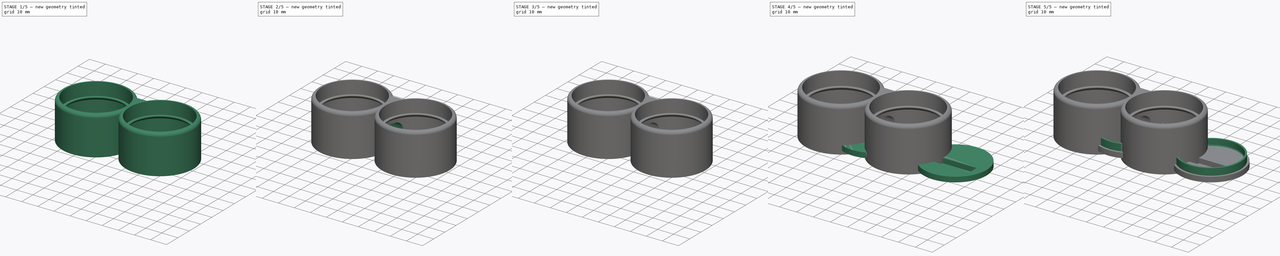
[diagram: build sequence overview — one tinted view per stage of 5, left to right]
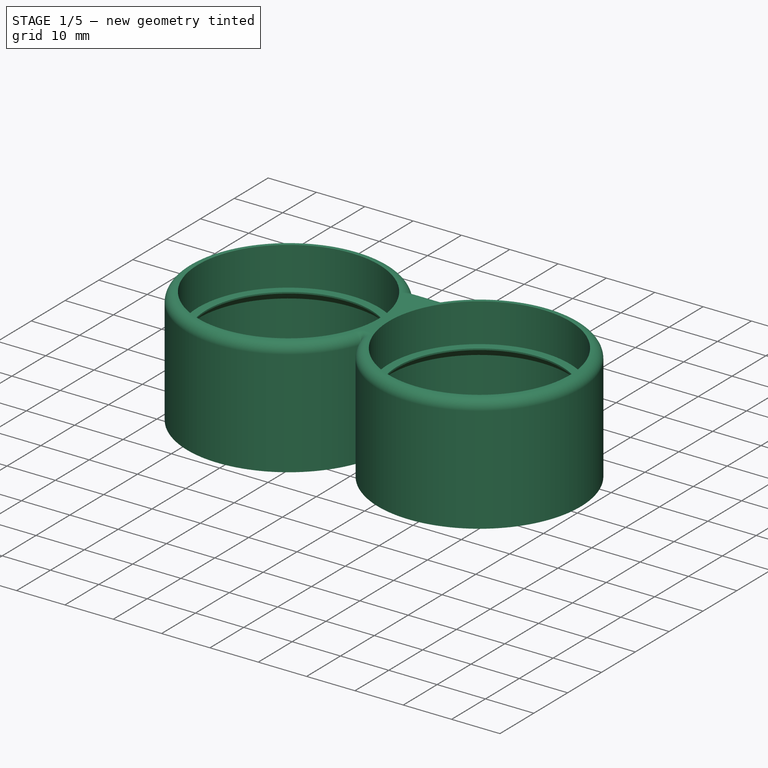
[diagram: stage 1 of 5 — iso view after this stage's code; geometry added in this stage tinted green]
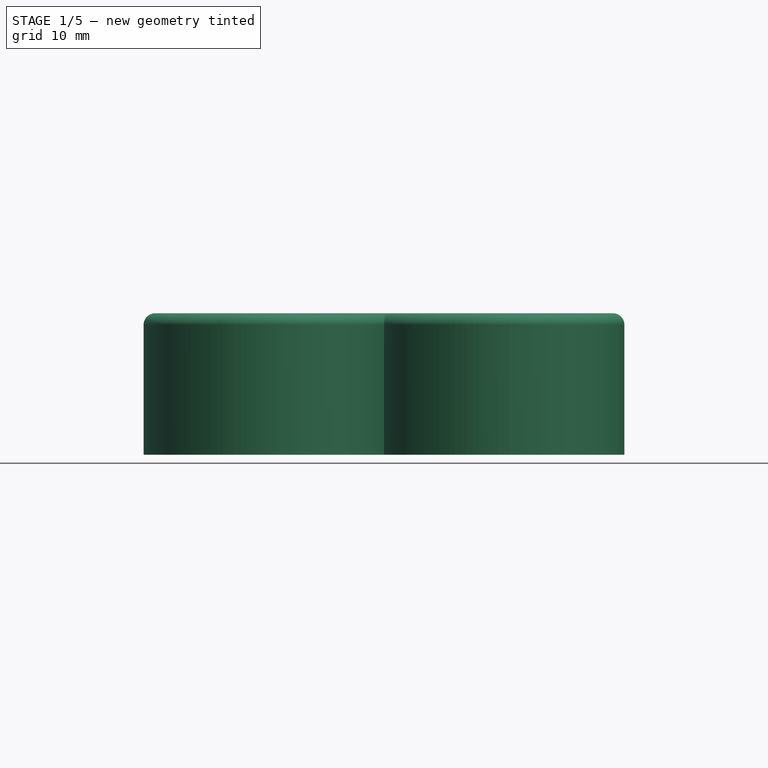
[diagram: stage 1 of 5 — front view after this stage's code; geometry added in this stage tinted green]
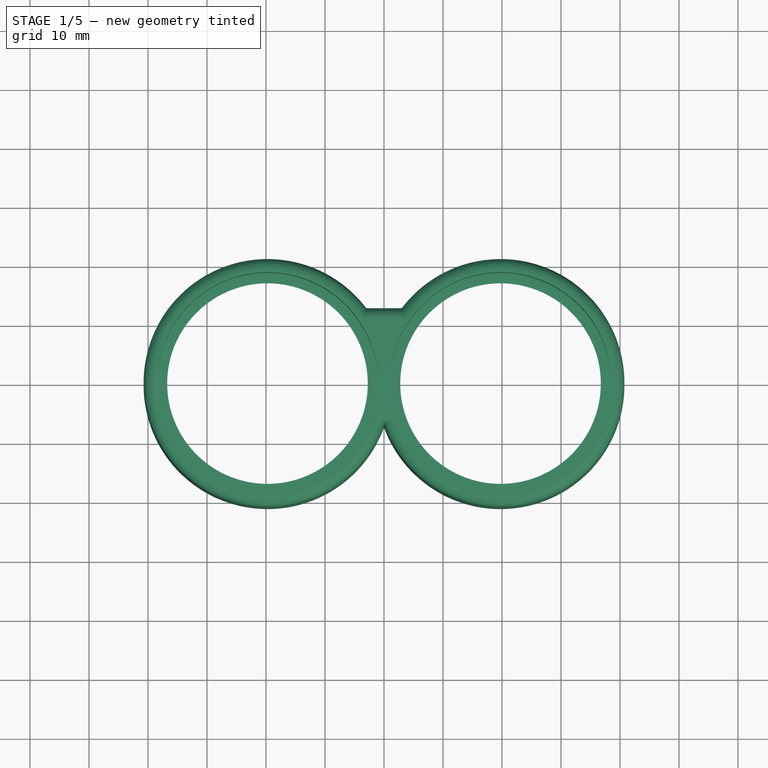
[diagram: stage 1 of 5 — top view after this stage's code; geometry added in this stage tinted green]
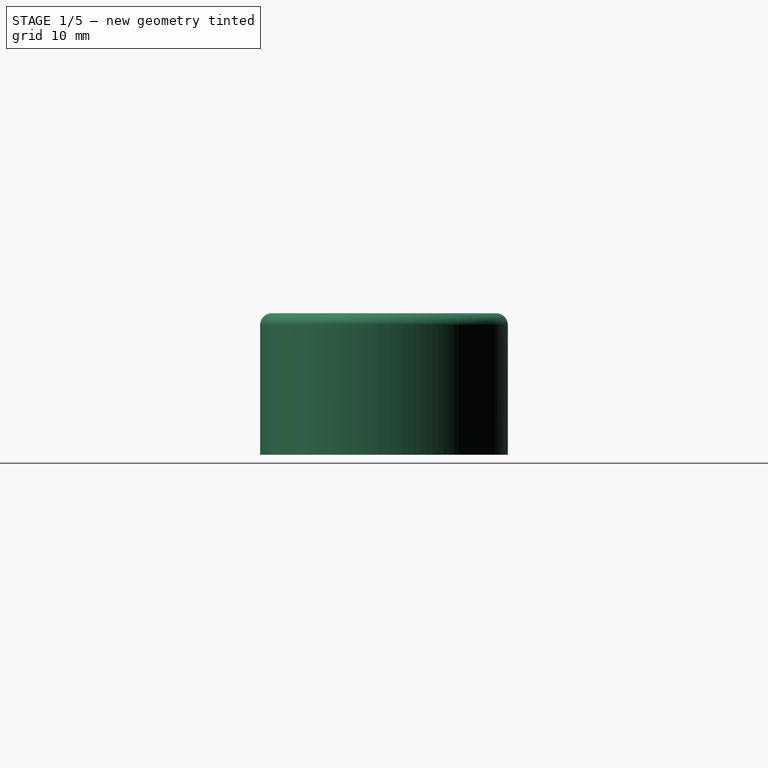
[diagram: stage 1 of 5 — right view after this stage's code; geometry added in this stage tinted green]
FCSTD DOCUMENT  (FreeCAD 0.21R33668 +26 (Git))
Label: Candle Holder
License: All rights reserved
LicenseURL: https://en.wikipedia.org/wiki/All_rights_reserved
objects: Sketcher::SketchObject×9, PartDesign::Fillet×6, PartDesign::Pad×5, PartDesign::Pocket×4, PartDesign::Chamfer×3, PartDesign::Body×2, App::Part×2
note: 47 computed .brp shape members not serialized (recipe doc carries the construction recipe); baked Part::Feature solids carry a one-line shape summary decoded from their .brp

FEATURE [PartDesign::Body] Body
  Group = -> [Sketch,Pad,Chamfer,Sketch001,Pocket,Fillet,Sketch002,Pad001,Fillet001,Fillet002]
  Origin = -> Origin001
  Tip = -> Fillet002
FEATURE [App::Part] Part
  Group = -> [Body]
  Origin = -> Origin
FEATURE [Sketcher::SketchObject] Sketch003
  FullyConstrained = true
  MapMode = 5
  Support = -> [XY_Plane003]
  sketch-geometry (9):
    g0: Circle CenterX=-19.75 CenterY=0 CenterZ=0 NormalX=0 NormalY=0 NormalZ=1 AngleXU=0 Radius=18.75
    g1: Circle CenterX=19.75 CenterY=0 CenterZ=0 NormalX=0 NormalY=0 NormalZ=1 AngleXU=0 Radius=18.75
    g2: ArcOfCircle CenterX=-19.75 CenterY=0 CenterZ=0 NormalX=0 NormalY=0 NormalZ=1 AngleXU=0 Radius=21 StartAngle=0.647459 EndAngle=5.93642
    g3: ArcOfCircle CenterX=19.75 CenterY=0 CenterZ=0 NormalX=0 NormalY=0 NormalZ=1 AngleXU=0 Radius=21 StartAngle=3.48836 EndAngle=8.77732
    g4: GeomPoint X=-1 Y=0 Z=0
    g5: GeomPoint X=1 Y=0 Z=0
    g6: LineSegment StartX=-3 StartY=12.6664 StartZ=0 EndX=3 EndY=12.6664 EndZ=0
    g7: LineSegment StartX=0 StartY=0 StartZ=0 EndX=-1 EndY=0 EndZ=0
    g8: LineSegment StartX=0 StartY=0 StartZ=0 EndX=1 EndY=0 EndZ=0
  constraints (23):
    c: PointOnObject(g0,g-1)
    c: PointOnObject(g1,g-1)
    c: Diameter(g1) = 37.5
    c: Equal(g0,g1)
    c: Coincident(g2,g0)
    c: Coincident(g3,g1)
    c: Equal(g2,g3)
    c: PointOnObject(g4,g0)
    c: PointOnObject(g5,g1)
    c: PointOnObject(g5,g-1)
    c: PointOnObject(g4,g-1)
    c: DistanceX(g4,g5) = 2
    c: Diameter(g2) = 42
    c: Coincident(g6,g3)
    c: Horizontal(g6)
    c: Coincident(g2,g6)
    c: Coincident(g7,g-1)
    c: Coincident(g7,g4)
    c: Coincident(g8,g7)
    c: Coincident(g8,g5)
    c: Equal(g7,g8)
    c: DistanceX(g6,g6) = 6
    c: Coincident(g3,g2)
FEATURE [PartDesign::Pad] Pad002
  Direction = (0,0,1)
  Length = 24
  Length2 = 10
  Profile = -> Sketch003
  ReferenceAxis = -> Sketch003 [N_Axis]
  Type = 0
FEATURE [PartDesign::Fillet] Fillet003
  Base = -> Pad002 [Edge9,Edge7,Edge4]
  BaseFeature = -> Pad002
  Radius = 2
  SupportTransform = false
  UseAllEdges = false
FEATURE [Sketcher::SketchObject] Sketch004
  ExternalGeometry = -> [Fillet003]
  FullyConstrained = true
  MapMode = 5
  Placement = pos=(0,0,24) rot=(0,0,1;0rad)
  Support = -> [Fillet003]
  sketch-geometry (4):
    g0: Circle CenterX=-19.75 CenterY=0 CenterZ=0 NormalX=0 NormalY=0 NormalZ=1 AngleXU=0 Radius=18.75
    g1: Circle CenterX=19.75 CenterY=0 CenterZ=0 NormalX=0 NormalY=0 NormalZ=1 AngleXU=0 Radius=18.75
    g2: Circle CenterX=-19.75 CenterY=0 CenterZ=0 NormalX=0 NormalY=0 NormalZ=1 AngleXU=0 Radius=17
    g3: Circle CenterX=19.75 CenterY=0 CenterZ=0 NormalX=0 NormalY=0 NormalZ=1 AngleXU=0 Radius=17
  constraints (8):
    c: Coincident(g0,g-3)
    c: Coincident(g1,g-4)
    c: Coincident(g2,g0)
    c: Coincident(g3,g1)
    c: Equal(g0,g-3)
    c: Equal(g1,g-4)
    c: Diameter(g2) = 34
    c: Equal(g2,g3)
FEATURE [PartDesign::Pad] Pad003
  BaseFeature = -> Fillet003
  Direction = (0,0,1)
  Length = 10
  Length2 = -8
  Profile = -> Sketch004
  ReferenceAxis = -> Sketch004 [N_Axis]
  Reversed = true
  Type = 4
FEATURE [PartDesign::Chamfer] Chamfer001
  Angle = 45
  Base = -> Pad003 [Edge32,Edge31]
  BaseFeature = -> Pad003
  ChamferType = 0
  FlipDirection = false
  Size = 1.7
  Size2 = 1
  SupportTransform = false
  UseAllEdges = false
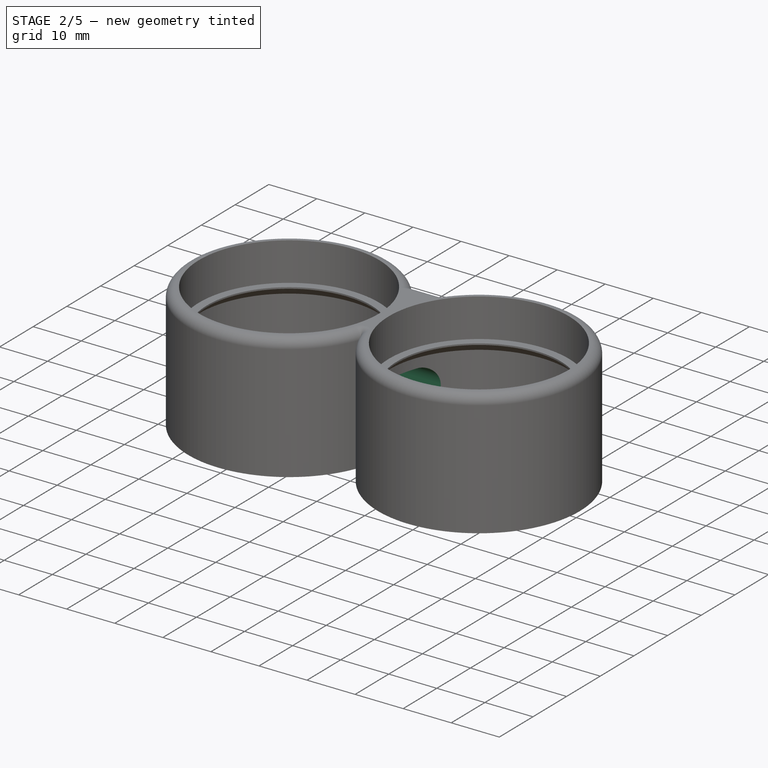
[diagram: stage 2 of 5 — iso view after this stage's code; geometry added in this stage tinted green]
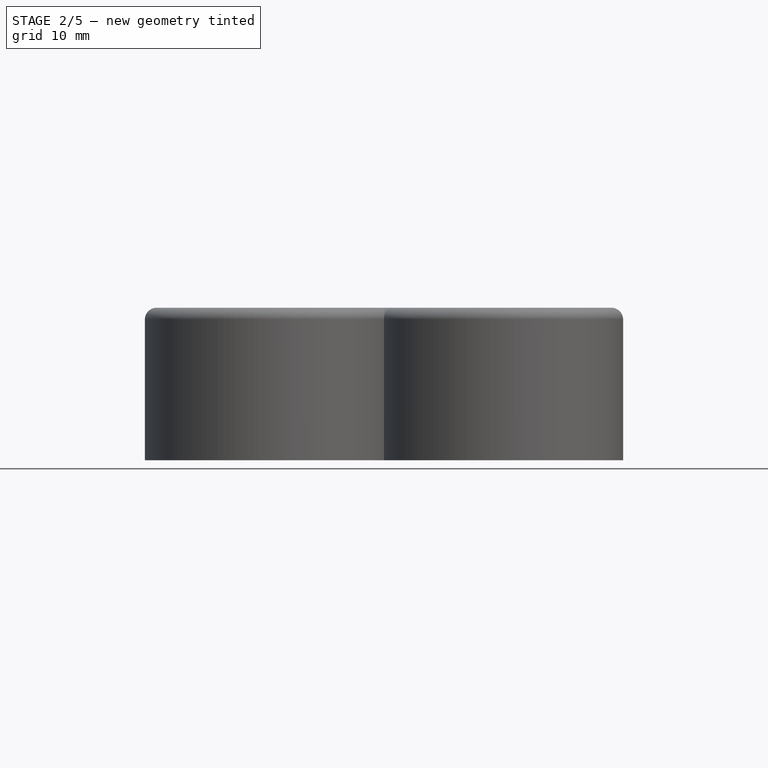
[diagram: stage 2 of 5 — front view after this stage's code; geometry added in this stage tinted green]
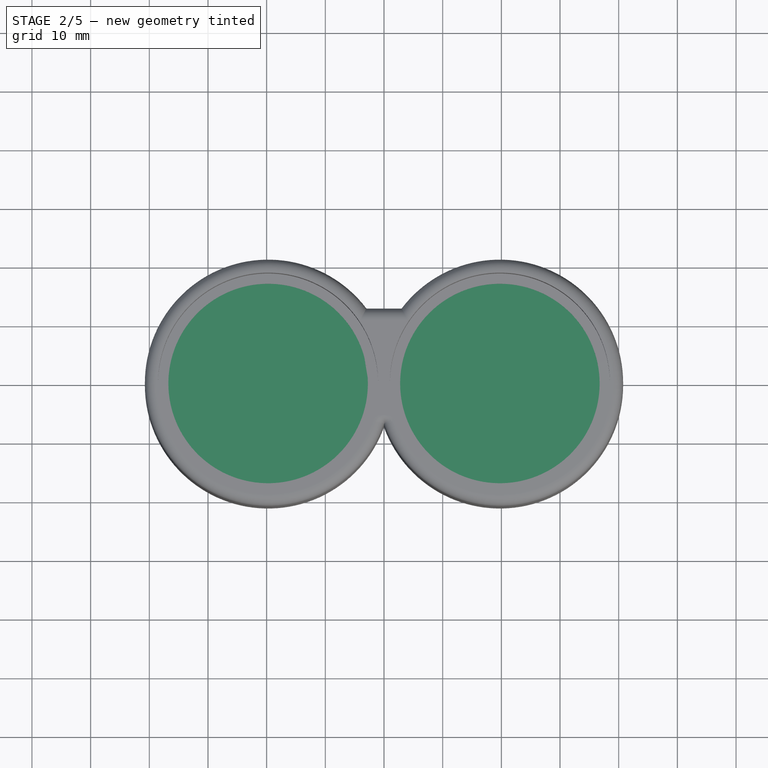
[diagram: stage 2 of 5 — top view after this stage's code; geometry added in this stage tinted green]
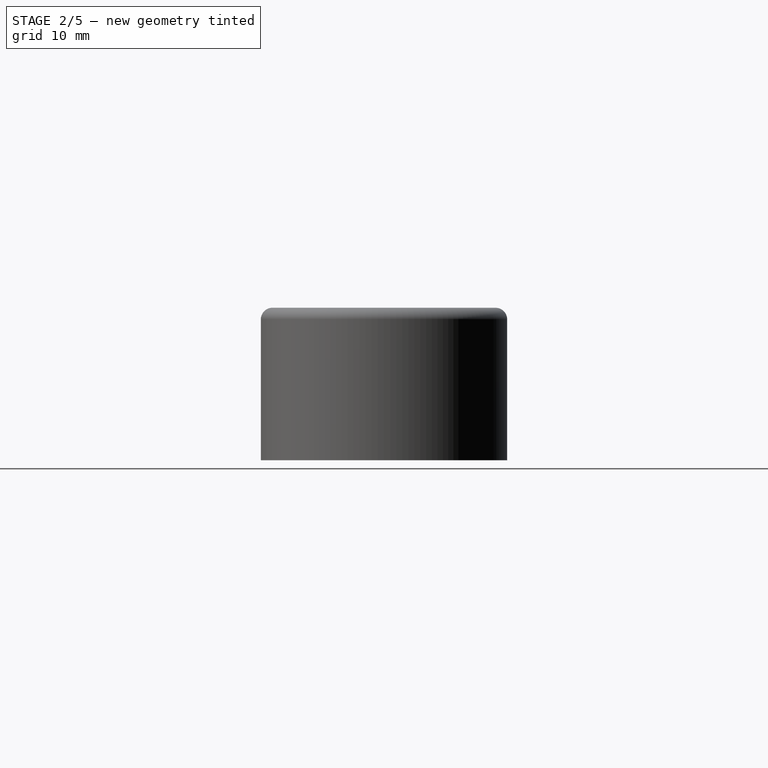
[diagram: stage 2 of 5 — right view after this stage's code; geometry added in this stage tinted green]
FEATURE [Sketcher::SketchObject] Sketch005
  ExternalGeometry = -> [Chamfer001]
  FullyConstrained = true
  MapMode = 5
  Placement = pos=(0,0,0) rot=(1,0,0;3.14159rad)
  Support = -> [Chamfer001]
  sketch-geometry (6):
    g0: LineSegment StartX=10 StartY=-10.6664 StartZ=0 EndX=-10 EndY=-10.6664 EndZ=0
    g1: LineSegment StartX=-10 StartY=-10.6664 StartZ=0 EndX=-10 EndY=5.13705 EndZ=0
    g2: LineSegment StartX=-10 StartY=5.13705 StartZ=0 EndX=10 EndY=5.13705 EndZ=0
    g3: LineSegment StartX=10 StartY=5.13705 StartZ=0 EndX=10 EndY=-10.6664 EndZ=0
    g4: LineSegment StartX=-1e-16 StartY=0 StartZ=0 EndX=10 EndY=5.13705 EndZ=0
    g5: LineSegment StartX=-1e-16 StartY=0 StartZ=0 EndX=-10 EndY=5.13705 EndZ=0
  constraints (16):
    c: Coincident(g0,g1)
    c: Coincident(g1,g2)
    c: Coincident(g2,g3)
    c: Coincident(g3,g0)
    c: Horizontal(g0)
    c: Horizontal(g2)
    c: Vertical(g1)
    c: Vertical(g3)
    c: DistanceY(g1,g-5) = 2
    c: DistanceY(g-5,g0) = 2
    c: Coincident(g4,g-1)
    c: Coincident(g4,g2)
    c: Coincident(g5,g4)
    c: Coincident(g5,g1)
    c: Equal(g4,g5)
    c: DistanceX(g2,g2) = 20
FEATURE [PartDesign::Pocket] Pocket001
  BaseFeature = -> Chamfer001
  Direction = (0,0,1)
  Length = 12
  Length2 = 5
  Profile = -> Sketch005
  ReferenceAxis = -> Sketch005 [N_Axis]
  Type = 0
FEATURE [PartDesign::Fillet] Fillet004
  Base = -> Pocket001 [Edge20,Edge21]
  BaseFeature = -> Pocket001
  Radius = 4
  SupportTransform = false
  UseAllEdges = false
FEATURE [Sketcher::SketchObject] Sketch006
  ExternalGeometry = -> [Fillet004]
  FullyConstrained = true
  MapMode = 5
  Placement = pos=(0,0,0) rot=(1,0,0;3.14159rad)
  Support = -> [Fillet004]
  sketch-geometry (3):
    g0: ArcOfCircle CenterX=-19.75 CenterY=0 CenterZ=0 NormalX=0 NormalY=0 NormalZ=1 AngleXU=0 Radius=21 StartAngle=0.346768 EndAngle=5.63573
    g1: ArcOfCircle CenterX=19.75 CenterY=0 CenterZ=0 NormalX=0 NormalY=0 NormalZ=1 AngleXU=0 Radius=21 StartAngle=3.78905 EndAngle=9.07801
    g2: LineSegment StartX=-3 StartY=-12.6664 StartZ=0 EndX=3 EndY=-12.6664 EndZ=0
  constraints (8):
    c: Coincident(g0,g-3)
    c: Coincident(g0,g-4)
    c: Vertical(g0,g-5)
    c: Coincident(g1,g-4)
    c: Coincident(g1,g0)
    c: Vertical(g1,g-5)
    c: Coincident(g2,g0)
    c: Coincident(g2,g1)
FEATURE [PartDesign::Pad] Pad004
  BaseFeature = -> Fillet004
  Direction = (0,0,-1)
  Length = 2
  Length2 = 10
  Profile = -> Sketch006
  ReferenceAxis = -> Sketch006 [N_Axis]
  Refine = true
  Type = 0
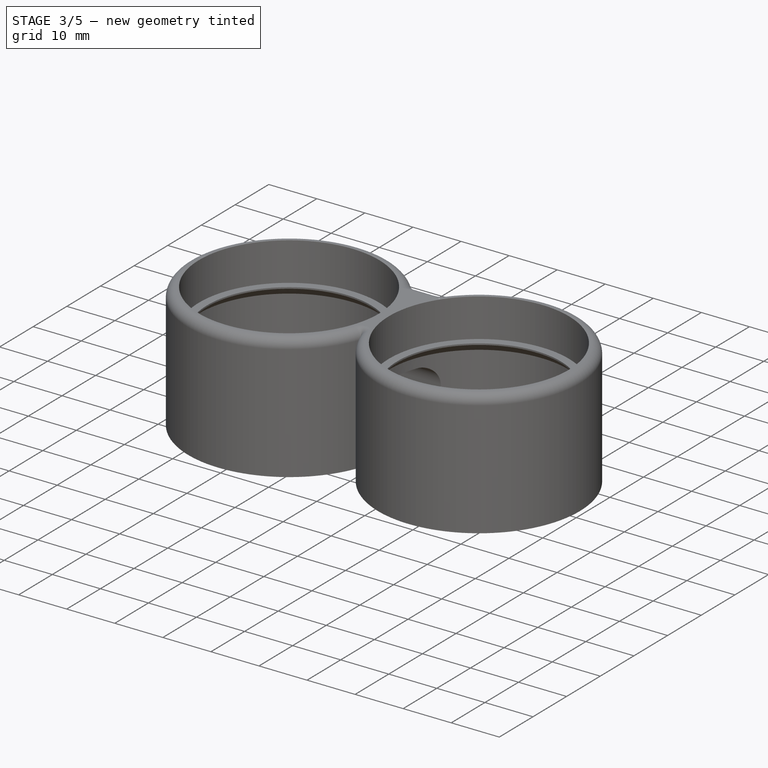
[diagram: stage 3 of 5 — iso view after this stage's code; geometry added in this stage tinted green]
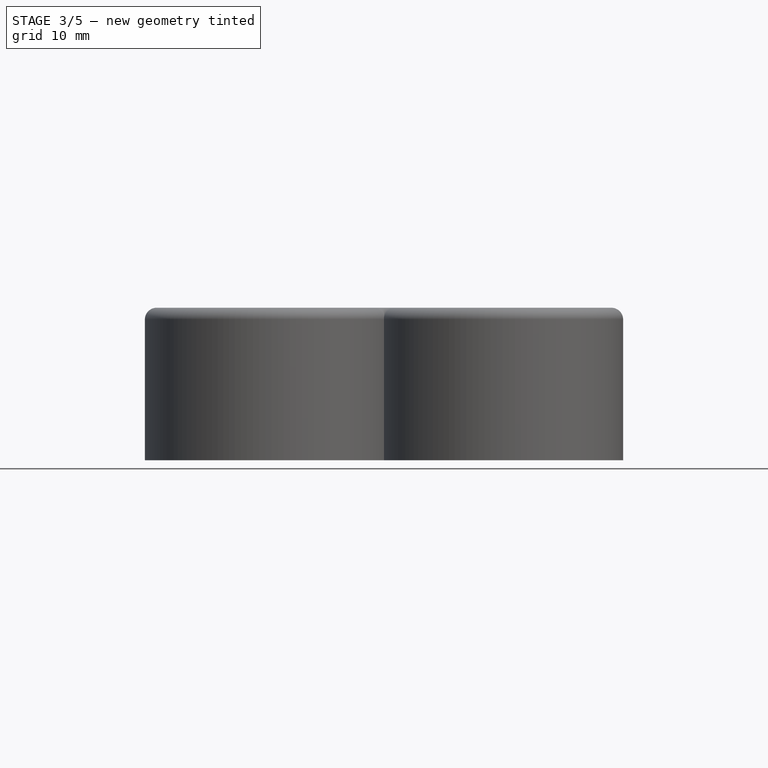
[diagram: stage 3 of 5 — front view after this stage's code; geometry added in this stage tinted green]
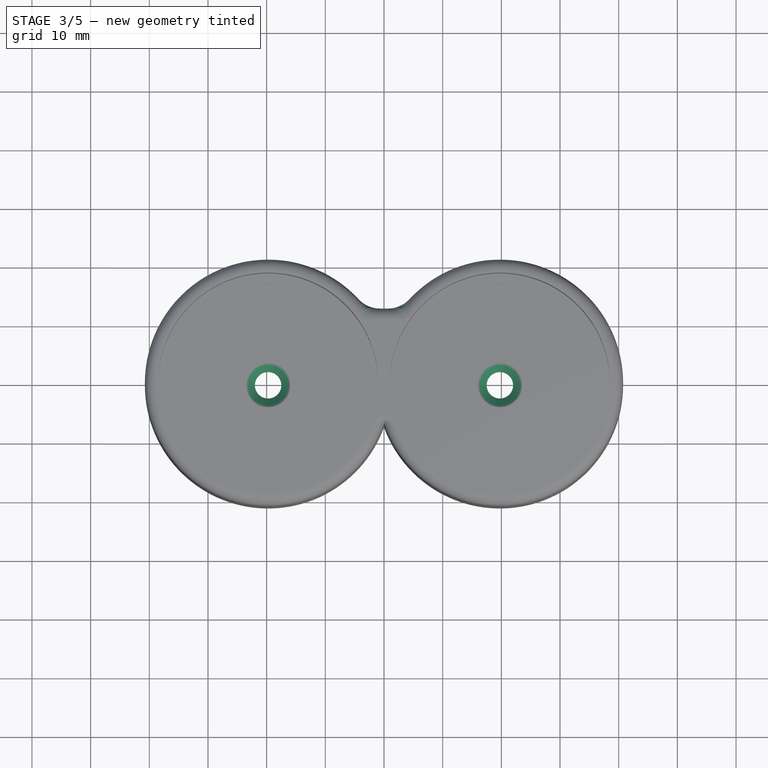
[diagram: stage 3 of 5 — top view after this stage's code; geometry added in this stage tinted green]
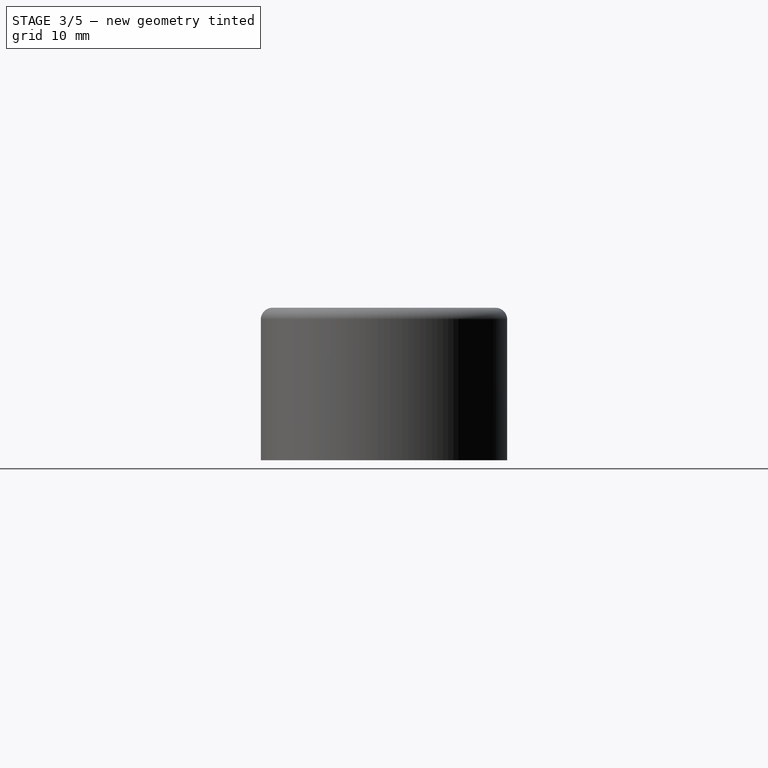
[diagram: stage 3 of 5 — right view after this stage's code; geometry added in this stage tinted green]
FEATURE [PartDesign::Fillet] Fillet005
  Base = -> Pad004 [Edge55,Edge53]
  BaseFeature = -> Pad004
  Radius = 5
  SupportTransform = false
  UseAllEdges = false
FEATURE [Sketcher::SketchObject] Sketch007
  FullyConstrained = true
  MapMode = 5
  Placement = pos=(0,10.6664,0) rot=(1,0,0;1.5708rad)
  Support = -> [Fillet005]
  sketch-geometry (1):
    g0: Circle CenterX=0 CenterY=2.2 CenterZ=0 NormalX=0 NormalY=0 NormalZ=1 AngleXU=0 Radius=1.9
  constraints (3):
    c: PointOnObject(g0,g-2)
    c: Diameter(g0) = 3.8
    c: DistanceY(g-1,g0) = 2.2
FEATURE [PartDesign::Pocket] Pocket002
  BaseFeature = -> Fillet005
  Direction = (0,1,-2e-16)
  Length = 5
  Length2 = 5
  Profile = -> Sketch007
  ReferenceAxis = -> Sketch007 [N_Axis]
  Type = 0
FEATURE [Sketcher::SketchObject] Sketch008
  ExternalGeometry = -> [Pocket002]
  FullyConstrained = true
  MapMode = 5
  Support = -> [Pocket002]
  sketch-geometry (2):
    g0: Circle CenterX=-19.75 CenterY=0 CenterZ=0 NormalX=0 NormalY=0 NormalZ=1 AngleXU=0 Radius=2.25
    g1: Circle CenterX=19.75 CenterY=0 CenterZ=0 NormalX=0 NormalY=0 NormalZ=1 AngleXU=0 Radius=2.25
  constraints (4):
    c: Diameter(g0) = 4.5
    c: Equal(g0,g1)
    c: Coincident(g0,g-3)
    c: Coincident(g1,g-4)
FEATURE [PartDesign::Pocket] Pocket003
  BaseFeature = -> Pocket002
  Direction = (0,0,-1)
  Length = 5
  Length2 = 5
  Profile = -> Sketch008
  ReferenceAxis = -> Sketch008 [N_Axis]
  Type = 0
FEATURE [PartDesign::Chamfer] Chamfer002
  Angle = 45
  Base = -> Pocket003 [Edge52,Edge54]
  BaseFeature = -> Pocket003
  ChamferType = 0
  FlipDirection = false
  Size = 1.5
  Size2 = 1
  SupportTransform = false
  UseAllEdges = false
FEATURE [PartDesign::Body] Body001
  Group = -> [Sketch003,Pad002,Fillet003,Sketch004,Pad003,Chamfer001,Sketch005,Pocket001,Fillet004,Sketch006,Pad004,Fillet005,Sketch007,Pocket002,Sketch008,Pocket003,Chamfer002]
  Origin = -> Origin003
  Tip = -> Chamfer002
FEATURE [App::Part] Part001
  Group = -> [Body001]
  Origin = -> Origin002
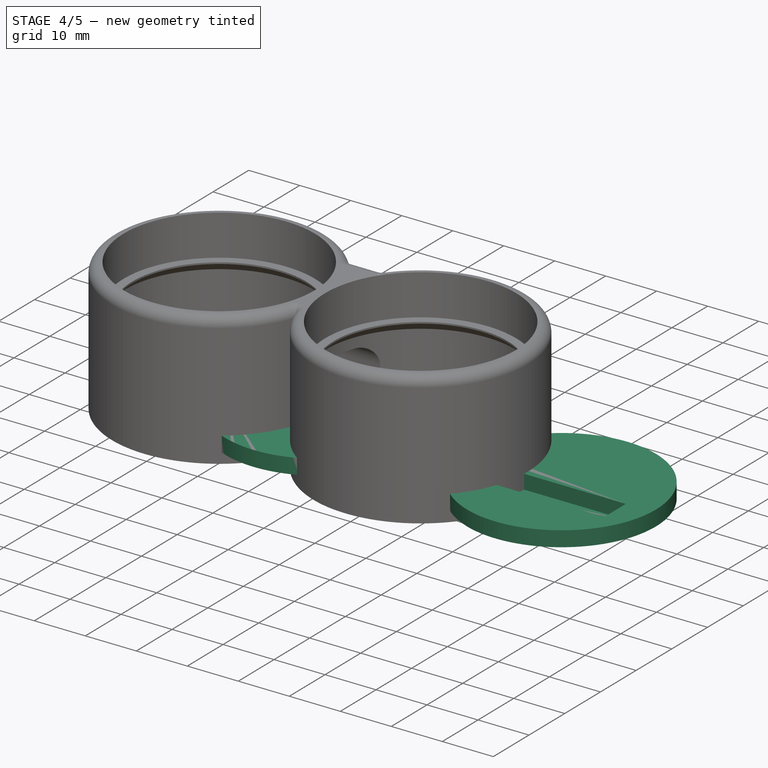
[diagram: stage 4 of 5 — iso view after this stage's code; geometry added in this stage tinted green]
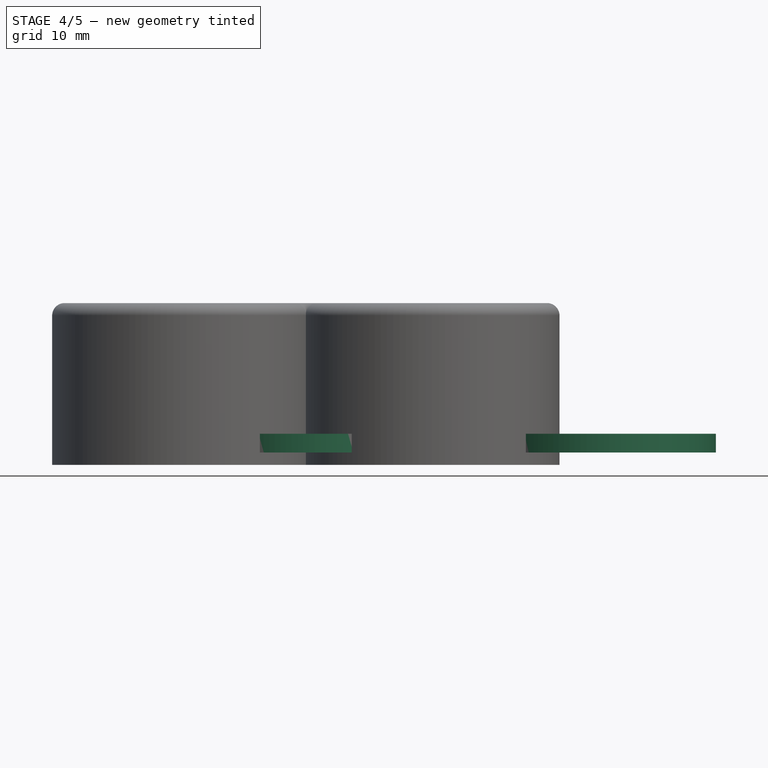
[diagram: stage 4 of 5 — front view after this stage's code; geometry added in this stage tinted green]
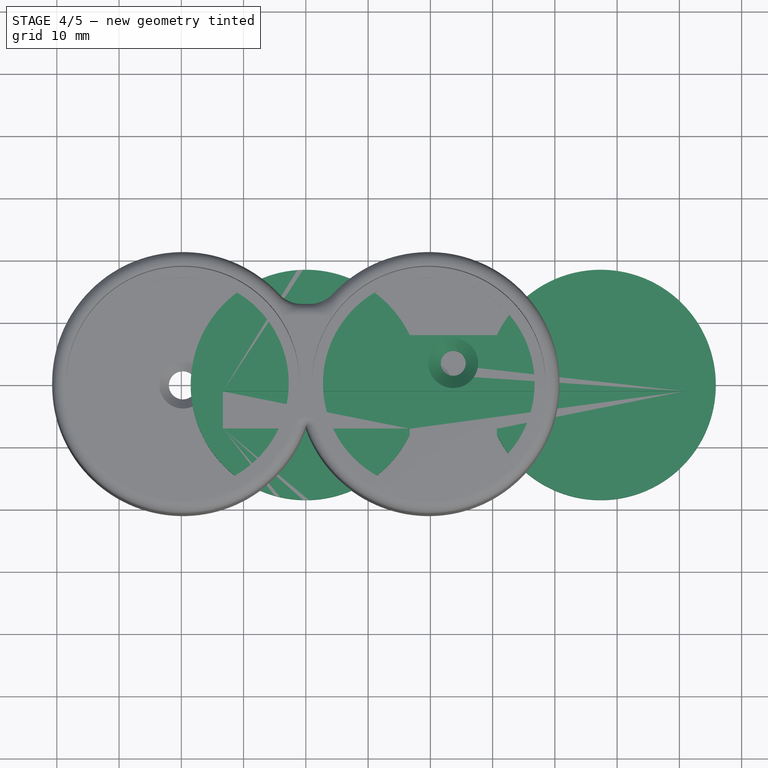
[diagram: stage 4 of 5 — top view after this stage's code; geometry added in this stage tinted green]
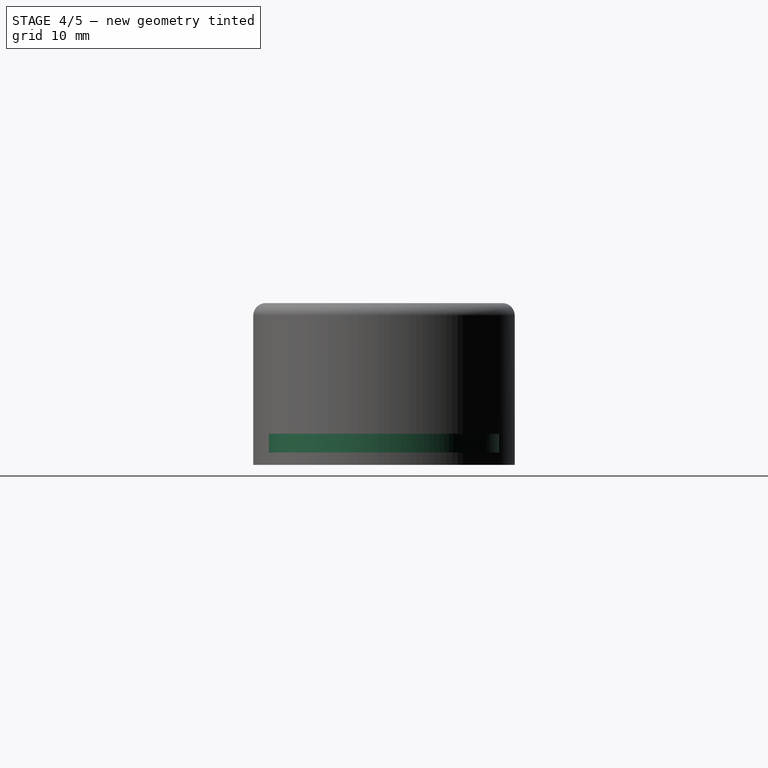
[diagram: stage 4 of 5 — right view after this stage's code; geometry added in this stage tinted green]
FEATURE [Sketcher::SketchObject] Sketch
  FullyConstrained = true
  MapMode = 5
  Support = -> [XY_Plane001]
  sketch-geometry (7):
    g0: ArcOfCircle CenterX=0 CenterY=0 CenterZ=0 NormalX=0 NormalY=0 NormalZ=1 AngleXU=0 Radius=18.5 StartAngle=0.447189 EndAngle=5.836
    g1: ArcOfCircle CenterX=47.3617 CenterY=0 CenterZ=0 NormalX=0 NormalY=0 NormalZ=1 AngleXU=0 Radius=18.5 StartAngle=3.58878 EndAngle=8.97759
    g2: LineSegment StartX=16.6808 StartY=8 StartZ=0 EndX=30.6808 EndY=8 EndZ=0
    g3: LineSegment StartX=16.6808 StartY=-8 StartZ=0 EndX=30.6808 EndY=-8 EndZ=0
    g4: Circle CenterX=23.6808 CenterY=3.5 CenterZ=0 NormalX=0 NormalY=0 NormalZ=1 AngleXU=0 Radius=2
    g5: LineSegment StartX=16.6808 StartY=8 StartZ=0 EndX=23.6808 EndY=3.5 EndZ=0
    g6: LineSegment StartX=23.6808 StartY=3.5 StartZ=0 EndX=30.6808 EndY=8 EndZ=0
  constraints (20):
    c: Coincident(g0,g-1)
    c: Diameter(g0) = 37
    c: PointOnObject(g1,g-1)
    c: Coincident(g2,g0)
    c: Coincident(g2,g1)
    c: Coincident(g3,g0)
    c: Coincident(g3,g1)
    c: Horizontal(g3)
    c: Horizontal(g2)
    c: Vertical(g1,g1)
    c: Equal(g0,g1)
    c: DistanceY(g1,g1) = 16
    c: DistanceX(g2,g2) = 14
    c: Coincident(g5,g0)
    c: Coincident(g5,g4)
    c: Coincident(g6,g4)
    c: Coincident(g6,g1)
    c: Diameter(g4) = 4
    c: Equal(g5,g6)
    c: DistanceY(g4,g1) = 4.5
FEATURE [PartDesign::Pad] Pad
  Direction = (0,0,1)
  Length = 3
  Length2 = 10
  Profile = -> Sketch
  ReferenceAxis = -> Sketch [N_Axis]
  Type = 0
FEATURE [PartDesign::Chamfer] Chamfer
  Angle = 45
  Base = -> Pad [Edge15]
  BaseFeature = -> Pad
  ChamferType = 0
  FlipDirection = false
  Size = 2
  Size2 = 1
  SupportTransform = false
  UseAllEdges = false
FEATURE [Sketcher::SketchObject] Sketch001
  ExternalGeometry = -> [Chamfer]
  FullyConstrained = true
  MapMode = 5
  Placement = pos=(0,0,3) rot=(0,0,1;0rad)
  Support = -> [Chamfer]
  sketch-geometry (8):
    g0: LineSegment StartX=60.6808 StartY=-1 StartZ=0 EndX=-13.3192 EndY=-1 EndZ=0
    g1: LineSegment StartX=-13.3192 StartY=-1 StartZ=0 EndX=-13.3192 EndY=-7 EndZ=0
    g2: LineSegment StartX=60.6808 StartY=-7 StartZ=0 EndX=60.6808 EndY=-1 EndZ=0
    g3: LineSegment StartX=16.6808 StartY=-8 StartZ=0 EndX=16.6808 EndY=-7 EndZ=0
    g4: LineSegment StartX=30.6808 StartY=-8 StartZ=0 EndX=30.6808 EndY=-7 EndZ=0
    g5: LineSegment StartX=30.6808 StartY=-7 StartZ=0 EndX=60.6808 EndY=-7 EndZ=0
    g6: LineSegment StartX=16.6808 StartY=-7 StartZ=0 EndX=-13.3192 EndY=-7 EndZ=0
    g7: LineSegment StartX=16.6808 StartY=-8 StartZ=0 EndX=30.6808 EndY=-8 EndZ=0
  constraints (22):
    c: Coincident(g0,g1)
    c: Coincident(g2,g0)
    c: Horizontal(g0)
    c: Vertical(g1)
    c: Vertical(g2)
    c: DistanceY(g0,g-1) = 1
    c: DistanceY(g-3,g1) = 1
    c: DistanceX(g1,g-3) = 30
    c: DistanceX(g-3,g2) = 30
    c: Coincident(g3,g-3)
    c: Vertical(g3)
    c: Coincident(g4,g-3)
    c: Vertical(g4)
    c: Coincident(g5,g4)
    c: Coincident(g5,g2)
    c: Horizontal(g5)
    c: Coincident(g6,g3)
    c: Coincident(g6,g1)
    c: Horizontal(g6)
    c: Horizontal(g3,g4)
    c: Coincident(g7,g3)
    c: Coincident(g7,g4)
FEATURE [PartDesign::Pocket] Pocket
  BaseFeature = -> Chamfer
  Direction = (0,0,-1)
  Length = 2.8
  Length2 = 5
  Profile = -> Sketch001
  ReferenceAxis = -> Sketch001 [N_Axis]
  Type = 0
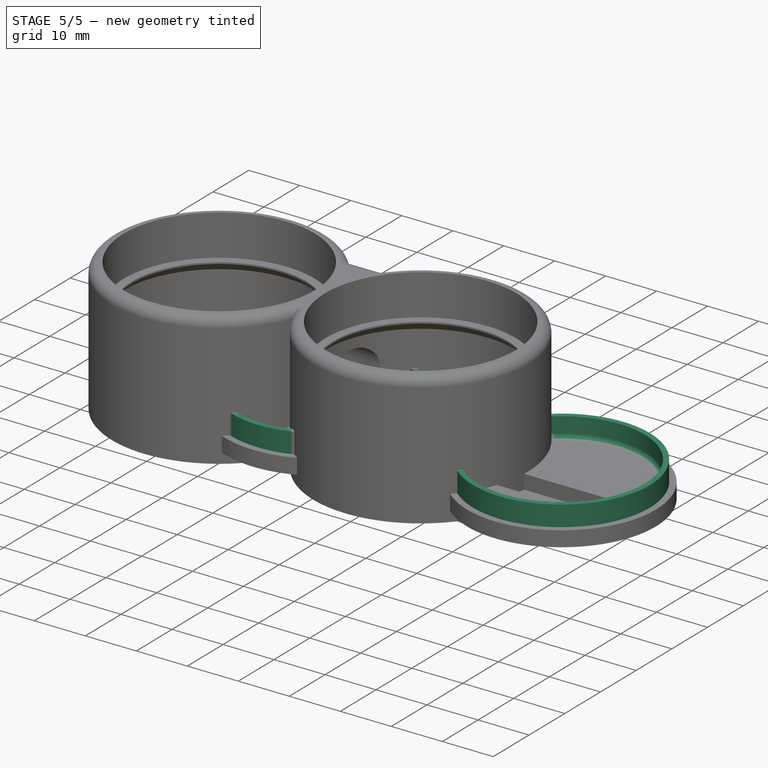
[diagram: stage 5 of 5 — iso view after this stage's code; geometry added in this stage tinted green]
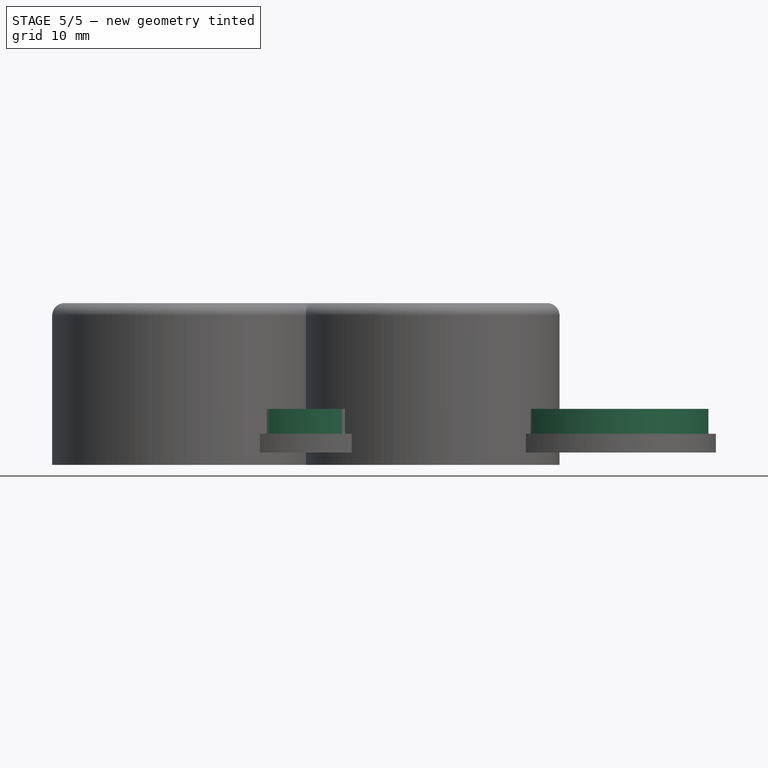
[diagram: stage 5 of 5 — front view after this stage's code; geometry added in this stage tinted green]
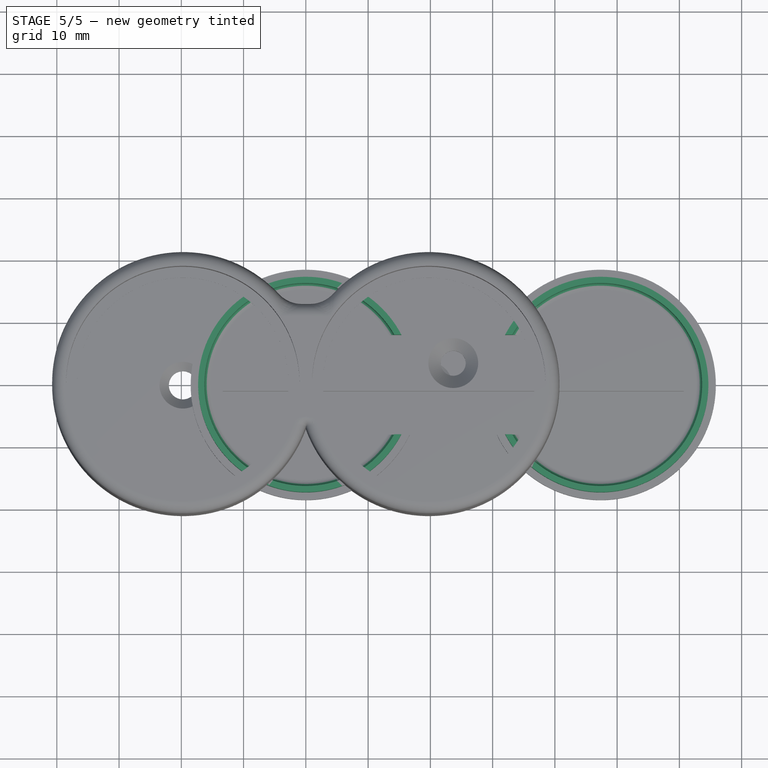
[diagram: stage 5 of 5 — top view after this stage's code; geometry added in this stage tinted green]
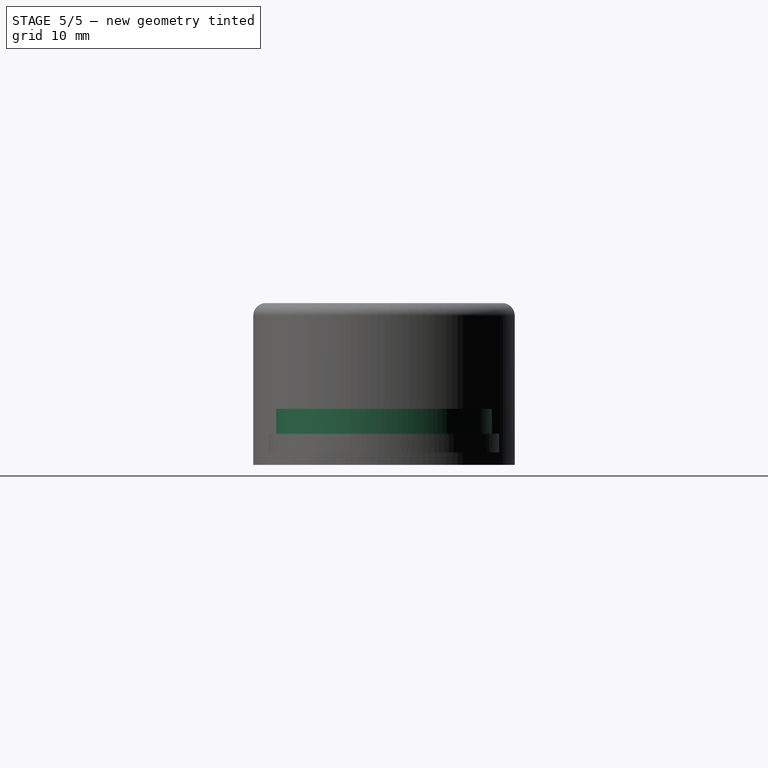
[diagram: stage 5 of 5 — right view after this stage's code; geometry added in this stage tinted green]
FEATURE [PartDesign::Fillet] Fillet
  Base = -> Pocket [Edge37,Edge27]
  BaseFeature = -> Pocket
  Radius = 0.99
  SupportTransform = false
  UseAllEdges = false
FEATURE [Sketcher::SketchObject] Sketch002
  ExternalGeometry = -> [Fillet]
  FullyConstrained = true
  MapMode = 5
  Placement = pos=(0,0,3) rot=(0,0,1;0rad)
  Support = -> [Fillet]
  sketch-geometry (14):
    g0: ArcOfCircle CenterX=47.3617 CenterY=0 CenterZ=0 NormalX=0 NormalY=0 NormalZ=1 AngleXU=0 Radius=17.3 StartAngle=3.62232 EndAngle=8.94405
    g1: ArcOfCircle CenterX=47.3617 CenterY=0 CenterZ=0 NormalX=0 NormalY=0 NormalZ=1 AngleXU=0 Radius=16.3 StartAngle=3.6546 EndAngle=8.91177
    g2: GeomPoint X=63.6617 Y=0 Z=0
    g3: GeomPoint X=64.6617 Y=0 Z=0
    g4: GeomPoint X=65.8617 Y=0 Z=0
    g5: LineSegment StartX=32.0225 StartY=8 StartZ=0 EndX=33.1599 EndY=8 EndZ=0
    g6: LineSegment StartX=32.0225 StartY=-8 StartZ=0 EndX=33.1599 EndY=-8 EndZ=0
    g7: ArcOfCircle CenterX=0 CenterY=0 CenterZ=0 NormalX=0 NormalY=0 NormalZ=1 AngleXU=0 Radius=17.3 StartAngle=0.480731 EndAngle=5.80245
    g8: ArcOfCircle CenterX=0 CenterY=0 CenterZ=0 NormalX=0 NormalY=0 NormalZ=1 AngleXU=0 Radius=16.3 StartAngle=0.513005 EndAngle=5.77018
    g9: GeomPoint X=-16.3 Y=0 Z=0
    g10: GeomPoint X=-17.3 Y=0 Z=0
    g11: GeomPoint X=-18.5 Y=0 Z=0
    g12: LineSegment StartX=15.3392 StartY=8 StartZ=0 EndX=14.2018 EndY=8 EndZ=0
    g13: LineSegment StartX=15.3392 StartY=-8 StartZ=0 EndX=14.2018 EndY=-8 EndZ=0
  constraints (36):
    c: Coincident(g0,g-4)
    c: Coincident(g1,g0)
    c: Horizontal(g0,g1)
    c: Horizontal(g0,g-4)
    c: Horizontal(g0,g1)
    c: Horizontal(g0,g-4)
    c: PointOnObject(g2,g1)
    c: PointOnObject(g3,g0)
    c: PointOnObject(g3,g-1)
    c: PointOnObject(g2,g-1)
    c: DistanceX(g2,g3) = 1
    c: PointOnObject(g4,g-1)
    c: PointOnObject(g4,g-4)
    c: DistanceX(g3,g4) = 1.2
    c: Coincident(g5,g0)
    c: Coincident(g6,g0)
    c: Coincident(g5,g1)
    c: Coincident(g6,g1)
    c: Coincident(g7,g-3)
    c: Coincident(g8,g7)
    c: Horizontal(g8,g7)
    c: Horizontal(g-3,g7)
    c: Horizontal(g7,g-3)
    c: Horizontal(g7,g8)
    c: PointOnObject(g9,g8)
    c: PointOnObject(g10,g7)
    c: PointOnObject(g11,g-3)
    c: PointOnObject(g9,g-1)
    c: PointOnObject(g10,g-1)
    c: PointOnObject(g11,g-1)
    c: Equal(g0,g7)
    c: Equal(g8,g1)
    c: Coincident(g12,g7)
    c: Coincident(g13,g7)
    c: Coincident(g12,g8)
    c: Coincident(g13,g8)
FEATURE [PartDesign::Pad] Pad001
  BaseFeature = -> Fillet
  Direction = (0,0,1)
  Length = 4
  Length2 = 10
  Profile = -> Sketch002
  ReferenceAxis = -> Sketch002 [N_Axis]
  Type = 0
FEATURE [PartDesign::Fillet] Fillet001
  Base = -> Pad001 [Edge15]
  BaseFeature = -> Pad001
  Radius = 1
  SupportTransform = false
  UseAllEdges = false
FEATURE [PartDesign::Fillet] Fillet002
  Base = -> Fillet001 [Edge22]
  BaseFeature = -> Fillet001
  Radius = 1
  SupportTransform = false
  UseAllEdges = false
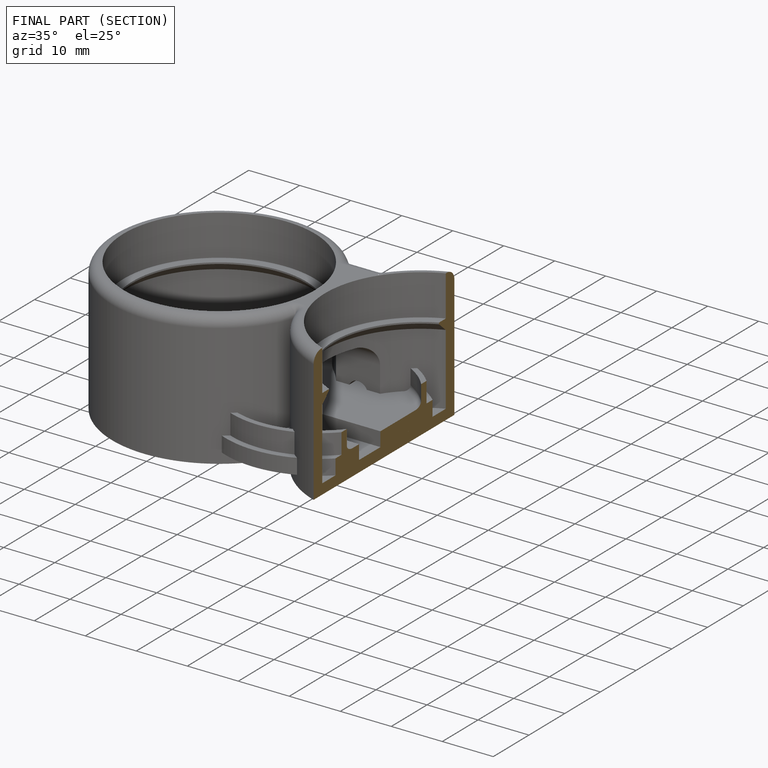
[diagram: finished part — half-section view (interior)]
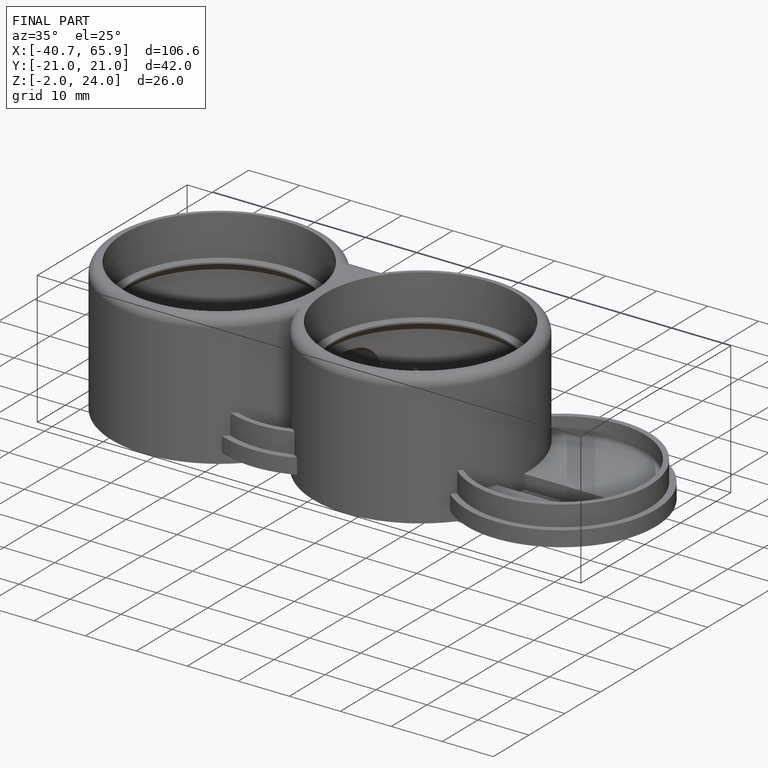
[diagram: finished part — iso view with bounding-box wireframe]
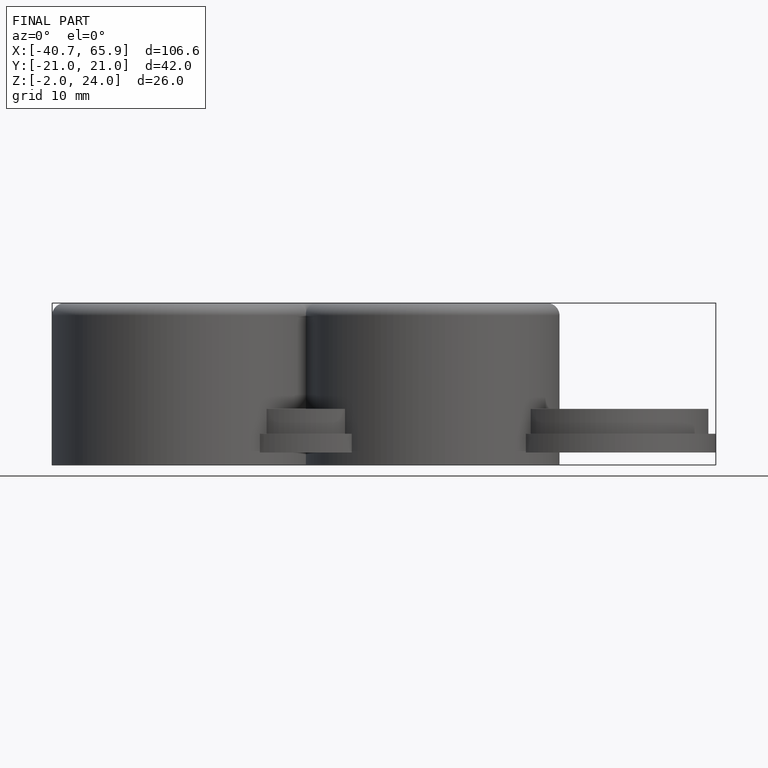
[diagram: finished part — front view with bounding-box wireframe]
